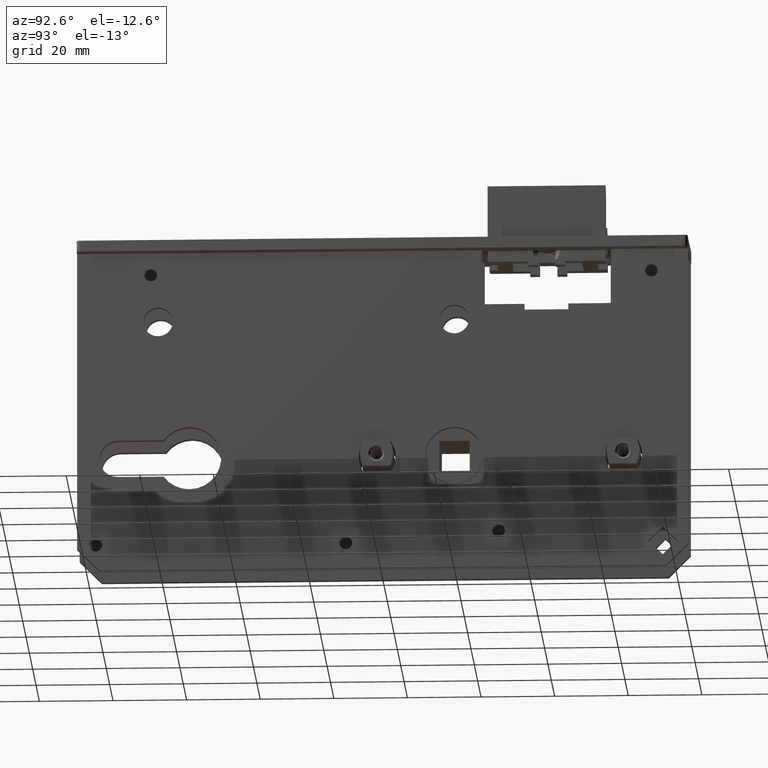
[diagram: clean part render]
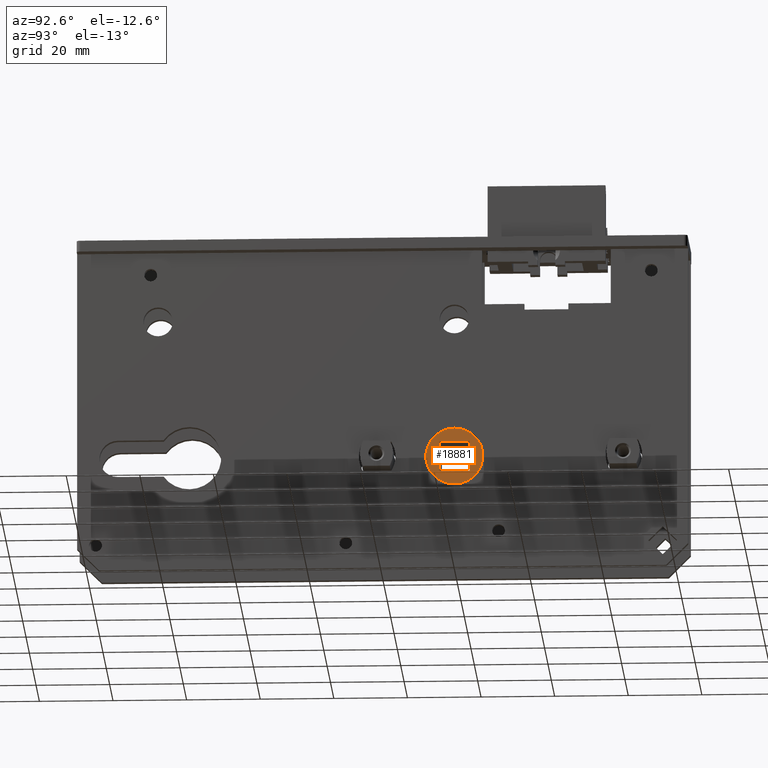
[diagram: same view with one face highlighted and labeled with its STEP entity id]
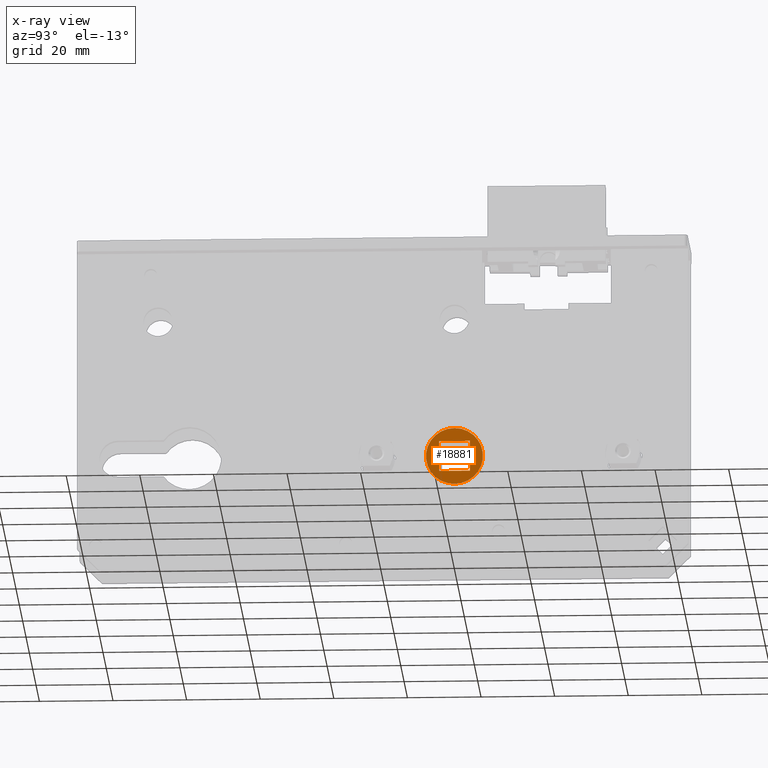
[diagram: x-ray of the same camera — body ghosted, the highlighted face saturated]
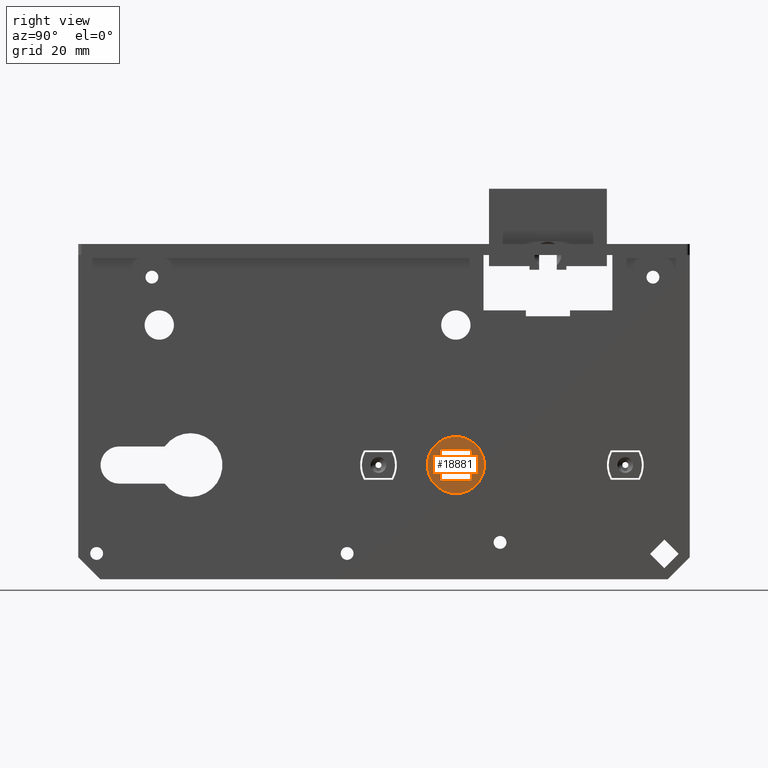
[diagram: same view with one face highlighted and labeled with its STEP entity id]
A machine part, auxiliary view. The second image highlights one B-rep face of the part: STEP entity #18881.
The next image is the same camera in x-ray: the body ghosted, the highlighted face saturated — about 0% of this face is hidden behind the body in this view.
A second angle (right view) of the same face is appended — the face is thin or edge-on in the first view.
In plain terms, the highlighted planar face has unit normal (1, 0, 0).
Its self-contained STEP definition (entity closure, byte-faithful):
#7 = FACE_BOUND ( 'NONE', #13765, .T. ) ;
#1628 = LINE ( 'NONE', #8960, #17245 ) ;
#2437 = DIRECTION ( 'NONE',  ( 0.000000000000000000, 0.000000000000000000, -1.000000000000000000 ) ) ;
#2495 = ORIENTED_EDGE ( 'NONE', *, *, #16124, .F. ) ;
#2564 = CARTESIAN_POINT ( 'NONE',  ( 8.000000000000000000, -4.150000000000001243, -4.150000000000002132 ) ) ;
#2720 = ORIENTED_EDGE ( 'NONE', *, *, #9637, .F. ) ;
#3970 = FACE_OUTER_BOUND ( 'NONE', #5633, .T. ) ;
#4459 = DIRECTION ( 'NONE',  ( 0.000000000000000000, 0.000000000000000000, -1.000000000000000000 ) ) ;
#5042 = EDGE_CURVE ( 'NONE', #12497, #16850, #11626, .T. ) ;
#5633 = EDGE_LOOP ( 'NONE', ( #14546 ) ) ;
#6197 = DIRECTION ( 'NONE',  ( -0.000000000000000000, 1.000000000000000000, 1.045014142154702874E-16 ) ) ;
#6737 = VERTEX_POINT ( 'NONE', #18010 ) ;
#8418 = EDGE_CURVE ( 'NONE', #16850, #19394, #11119, .T. ) ;
#8960 = CARTESIAN_POINT ( 'NONE',  ( 8.000000000000000000, 4.150000000000000355, 4.150000000000000355 ) ) ;
#9433 = CARTESIAN_POINT ( 'NONE',  ( 8.000000000000000000, 0.000000000000000000, -7.750000000000000000 ) ) ;
#9637 = EDGE_CURVE ( 'NONE', #19394, #6737, #1628, .T. ) ;
#9775 = ORIENTED_EDGE ( 'NONE', *, *, #5042, .F. ) ;
#9826 = AXIS2_PLACEMENT_3D ( 'NONE', #13542, #10563, #4459 ) ;
#9895 = DIRECTION ( 'NONE',  ( 0.000000000000000000, 0.000000000000000000, -1.000000000000000000 ) ) ;
#10495 = PLANE ( 'NONE',  #9826 ) ;
#10563 = DIRECTION ( 'NONE',  ( 1.000000000000000000, 0.000000000000000000, 0.000000000000000000 ) ) ;
#10951 = LINE ( 'NONE', #13725, #16857 ) ;
#11119 = LINE ( 'NONE', #15336, #13269 ) ;
#11506 = EDGE_CURVE ( 'NONE', #19190, #19190, #12668, .T. ) ;
#11508 = CARTESIAN_POINT ( 'NONE',  ( 8.000000000000000000, -4.150000000000001243, 4.149999999999998579 ) ) ;
#11626 = LINE ( 'NONE', #11508, #13061 ) ;
#12497 = VERTEX_POINT ( 'NONE', #16224 ) ;
#12668 = CIRCLE ( 'NONE', #13186, 7.750000000000000000 ) ;
#13061 = VECTOR ( 'NONE', #2437, 1000.000000000000000 ) ;
#13186 = AXIS2_PLACEMENT_3D ( 'NONE', #15903, #18941, #9895 ) ;
#13269 = VECTOR ( 'NONE', #6197, 1000.000000000000000 ) ;
#13542 = CARTESIAN_POINT ( 'NONE',  ( 8.000000000000000000, 0.000000000000000000, 0.000000000000000000 ) ) ;
#13725 = CARTESIAN_POINT ( 'NONE',  ( 8.000000000000000000, 4.150000000000000355, 4.150000000000000355 ) ) ;
#13765 = EDGE_LOOP ( 'NONE', ( #2720, #14111, #9775, #2495 ) ) ;
#14111 = ORIENTED_EDGE ( 'NONE', *, *, #8418, .F. ) ;
#14546 = ORIENTED_EDGE ( 'NONE', *, *, #11506, .T. ) ;
#15336 = CARTESIAN_POINT ( 'NONE',  ( 8.000000000000000000, 4.150000000000000355, -4.150000000000001243 ) ) ;
#15903 = CARTESIAN_POINT ( 'NONE',  ( 8.000000000000000000, 0.000000000000000000, 0.000000000000000000 ) ) ;
#16124 = EDGE_CURVE ( 'NONE', #6737, #12497, #10951, .T. ) ;
#16224 = CARTESIAN_POINT ( 'NONE',  ( 8.000000000000000000, -4.150000000000001243, 4.149999999999998579 ) ) ;
#16674 = DIRECTION ( 'NONE',  ( 0.000000000000000000, -1.000000000000000000, -2.090028284309405749E-16 ) ) ;
#16850 = VERTEX_POINT ( 'NONE', #2564 ) ;
#16857 = VECTOR ( 'NONE', #16674, 1000.000000000000000 ) ;
#17245 = VECTOR ( 'NONE', #19543, 1000.000000000000000 ) ;
#18003 = CARTESIAN_POINT ( 'NONE',  ( 8.000000000000000000, 4.150000000000000355, -4.150000000000001243 ) ) ;
#18010 = CARTESIAN_POINT ( 'NONE',  ( 8.000000000000000000, 4.150000000000000355, 4.150000000000000355 ) ) ;
#18881 = ADVANCED_FACE ( 'NONE', ( #3970, #7 ), #10495, .T. ) ;
#18941 = DIRECTION ( 'NONE',  ( 1.000000000000000000, 0.000000000000000000, 0.000000000000000000 ) ) ;
#19190 = VERTEX_POINT ( 'NONE', #9433 ) ;
#19394 = VERTEX_POINT ( 'NONE', #18003 ) ;
#19543 = DIRECTION ( 'NONE',  ( -0.000000000000000000, -0.000000000000000000, 1.000000000000000000 ) ) ;